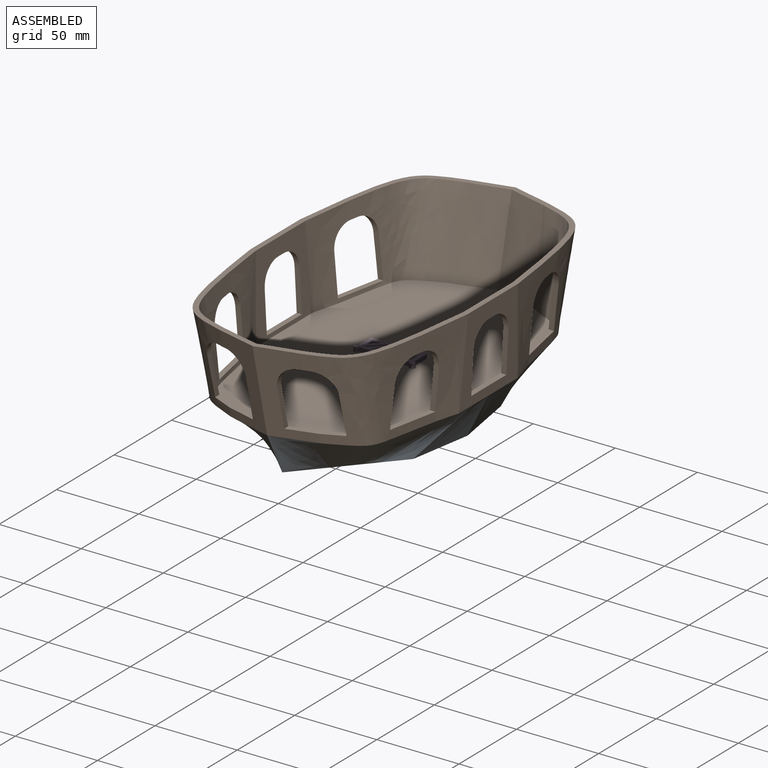
[diagram: assembled view]
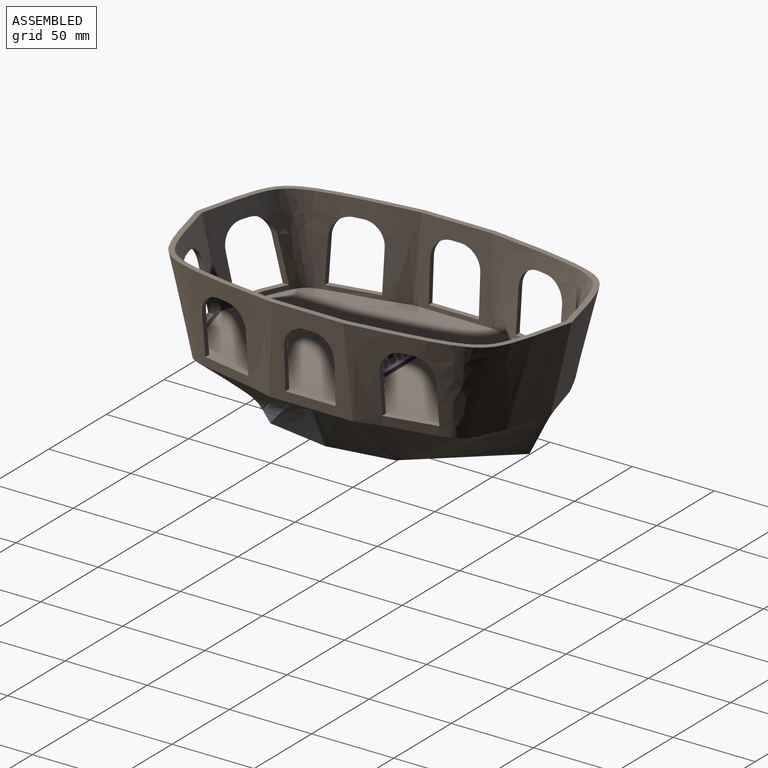
[diagram: assembled view, second angle]
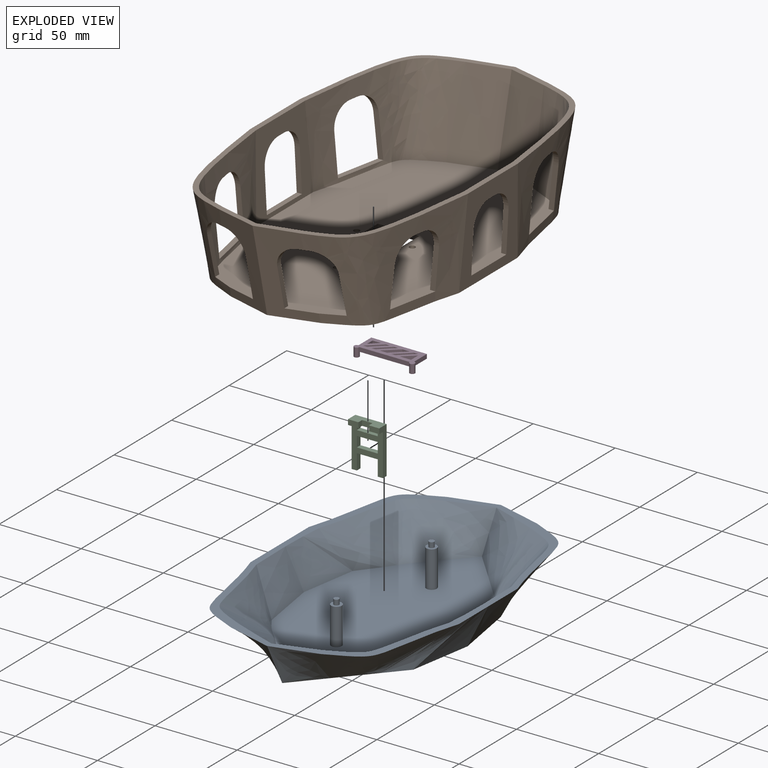
[diagram: exploded view]
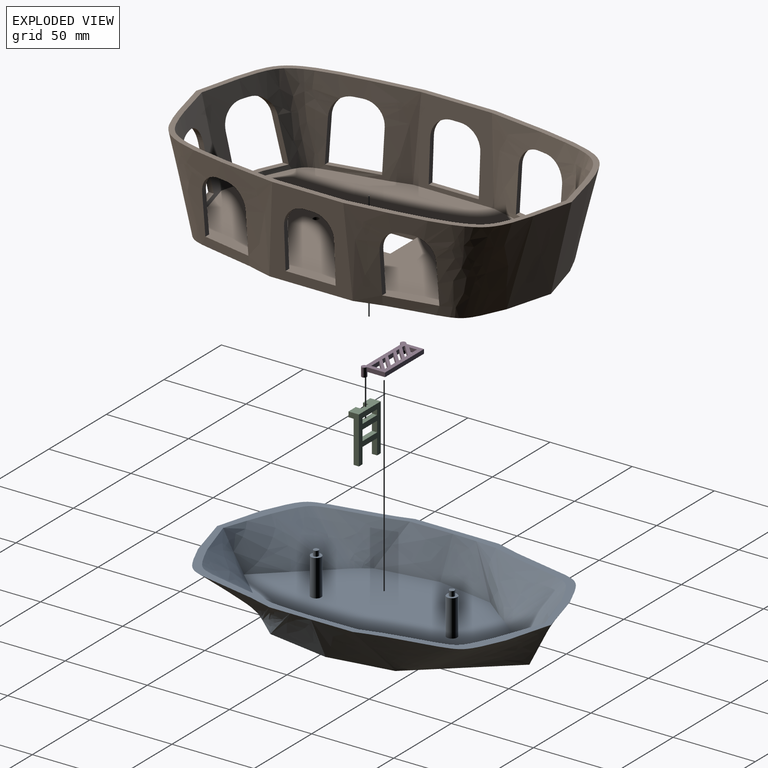
[diagram: exploded view, second angle]
ASSEMBLY  parts=4 mates=6
PART A: 39 faces, bbox 143.2x218.3x43.5 mm
  f0: plane 218.08x141.88mm, normal (0,0,1), area 2269.2mm2, adj f2,f3,f4,f5,f6,f7,f8,f9
  f1: plane 177.63x102.31mm, normal (0,0,-1), area 11730.8mm2, adj f2,f3,f4,f5,f6,f7,f8,f9
  f2: bspline ~38.06x25.4mm, area 744.8mm2, adj f0,f1,f3,f8
  f3: bspline ~38.01x30.21mm, area 409.2mm2, adj f0,f1,f2,f4
  f4: bspline ~68.55x47.32mm, area 2002.2mm2, adj f0,f1,f3,f5
  f5: bspline ~31.8x27.82mm, area 814.1mm2, adj f0,f1,f4,f13
  f6: bspline ~51.27x33.63mm, area 1269.3mm2, adj f0,f1,f7,f12
  f7: bspline ~68.55x36.07mm, area 1757.9mm2, adj f0,f1,f6,f8
  f8: bspline ~38.06x25.4mm, area 945mm2, adj f0,f1,f2,f7
  f9: bspline ~38.06x25.4mm, area 744.8mm2, adj f0,f1,f10,f15
  f10: bspline ~38.31x30.47mm, area 409.2mm2, adj f0,f1,f9,f11
  f11: bspline ~68.55x47.32mm, area 2002.2mm2, adj f0,f1,f10,f12
  f12: bspline ~31.48x27.43mm, area 814.1mm2, adj f0,f1,f6,f11
  f13: bspline ~51.27x33.63mm, area 1269.3mm2, adj f0,f1,f5,f14
  f14: bspline ~68.55x36.07mm, area 1757.9mm2, adj f0,f1,f13,f15
  f15: bspline ~38.06x25.4mm, area 945mm2, adj f0,f1,f9,f14
  f16: plane 173.28x100.45mm, normal (0,0,1), area 10922.6mm2, adj f17,f18,f19,f20,f21,f22,f23,f24
  f17: offset ~44.41x31.75mm, area 630.7mm2, adj f0,f16,f18,f23
  f18: offset ~44.66x36.83mm, area 353.4mm2, adj f0,f16,f17,f19
  f19: offset ~77.02x54.5mm, area 1649.3mm2, adj f0,f16,f18,f20
  f20: offset ~38.15x34.17mm, area 663.8mm2, adj f0,f16,f19,f28
  f21: offset ~57.62x39.98mm, area 1092.1mm2, adj f0,f16,f22,f27
  f22: offset ~76.2x44.38mm, area 1400.4mm2, adj f0,f16,f21,f23
  f23: offset ~44.41x31.75mm, area 807.1mm2, adj f0,f16,f17,f22
  f24: offset ~44.41x31.75mm, area 630.7mm2, adj f0,f16,f25,f30
  f25: offset ~44.66x36.82mm, area 353.3mm2, adj f0,f16,f24,f26
  f26: offset ~77.02x54.5mm, area 1669.5mm2, adj f0,f16,f25,f27
  f27: offset ~38.15x34.17mm, area 662.9mm2, adj f0,f16,f21,f26
  f28: offset ~57.62x39.98mm, area 1092.1mm2, adj f0,f16,f20,f29
  f29: offset ~76.2x44.38mm, area 1400.4mm2, adj f0,f16,f28,f30
  f30: offset ~44.41x31.75mm, area 807.1mm2, adj f0,f16,f24,f29
  f31: cylinder r=3.17mm len=22.23mm, axis (0,0,-1), area 443.4mm2, adj f16,f32
  f32: plane 6.35x6.35mm, normal (0,0,1), area 23.8mm2, adj f31,f37
  f33: cylinder r=3.17mm len=22.23mm, axis (0,0,-1), area 443.4mm2, adj f16,f34
  f34: plane 6.35x6.35mm, normal (0,0,1), area 23.8mm2, adj f33,f35
  f35: cylinder r=1.59mm len=3.18mm, axis (0,0,-1), area 31.7mm2, adj f34,f36
  f36: plane 3.18x3.18mm, normal (0,0,1), area 7.9mm2, adj f35
  f37: cylinder r=1.59mm len=3.18mm, axis (0,0,-1), area 31.7mm2, adj f32,f38
  f38: plane 3.18x3.18mm, normal (0,0,1), area 7.9mm2, adj f37
PART B: 79 faces, bbox 139x235x60.3 mm
  f0: bspline ~86.42x53.98mm, area 4000mm2, adj f8,f10,f11,f12,f55,f56,f57,f58
  f1: bspline ~86.42x53.98mm, area 3999.9mm2, adj f8,f10,f13,f16,f43,f44,f45,f46
  f2: offset ~92.77x60.32mm, area 3532.8mm2, adj f9,f10,f17,f18,f55,f56,f57,f58
  f3: offset ~92.77x60.32mm, area 3532.8mm2, adj f9,f10,f19,f22,f43,f44,f45,f46
  f4: bspline ~53.98x27.43mm, area 857.3mm2, adj f5,f8,f10,f15,f35,f36,f38,f42
  f5: bspline ~86.42x53.98mm, area 3449.8mm2, adj f4,f8,f10,f11,f36,f37,f38,f41
  f6: offset ~60.32x33.78mm, area 753.5mm2, adj f7,f9,f10,f21,f35,f36,f38,f42
  f7: offset ~92.77x60.32mm, area 2940.1mm2, adj f6,f9,f10,f17,f36,f37,f38,f41
  f8: plane 203.49x127.29mm, normal (0,0,-1), area 20828.6mm2, adj f0,f1,f4,f5,f11,f12,f13,f14
  f9: plane 197.94x120.97mm, normal (0,0,1), area 19385.7mm2, adj f2,f3,f6,f7,f17,f18,f19,f20
  f10: plane 229.91x133.94mm, normal (0,0,1), area 1845mm2, adj f0,f1,f2,f3,f4,f5,f6,f7
  f11: plane 54.25x51.08mm, normal (-1,0,-0.05), area 1450.3mm2, adj f0,f5,f8,f10,f59,f60,f61,f62
  f12: bspline ~53.98x27.43mm, area 1492.9mm2, adj f0,f8,f10,f16
  f13: plane 54.25x51.08mm, normal (1,0,-0.05), area 1450.3mm2, adj f1,f8,f10,f14,f51,f52,f53,f54
  f14: bspline ~86.42x53.98mm, area 3449.8mm2, adj f8,f10,f13,f15,f31,f32,f34,f39
  f15: bspline ~53.98x27.43mm, area 857.3mm2, adj f4,f8,f10,f14,f32,f33,f34,f40
  f16: bspline ~53.98x27.43mm, area 1492.9mm2, adj f1,f8,f10,f12
  f17: plane 51.08x49.69mm, normal (1,0,0.05), area 1257.7mm2, adj f2,f7,f9,f10,f59,f60,f61,f62
  f18: offset ~60.32x33.78mm, area 1352.6mm2, adj f2,f9,f10,f22
  f19: plane 51.08x49.69mm, normal (-1,0,0.05), area 1257.7mm2, adj f3,f9,f10,f20,f51,f52,f53,f54
  f20: offset ~92.77x60.32mm, area 2939.9mm2, adj f9,f10,f19,f21,f31,f32,f34,f39
  f21: offset ~60.32x33.78mm, area 753.5mm2, adj f6,f9,f10,f20,f32,f33,f34,f40
  f22: offset ~60.32x33.78mm, area 1352.6mm2, adj f3,f9,f10,f18
  f23: plane 25.4x3.18mm, normal (-1,0,0), area 80.6mm2, adj f8,f9,f24,f25
  f24: plane 25.4x3.18mm, normal (0,-1,0), area 80.6mm2, adj f8,f9,f23,f26
  f25: plane 25.4x3.18mm, normal (0,1,0), area 80.6mm2, adj f8,f9,f23,f26
  f26: plane 25.4x3.18mm, normal (1,0,0), area 80.6mm2, adj f8,f9,f24,f25
  f27: cylinder r=1.78mm len=3.56mm, axis (0,0,-1), area 35.5mm2, adj f8,f9
  f28: cylinder r=1.78mm len=3.56mm, axis (0,0,-1), area 35.5mm2, adj f8,f9
  f29: cylinder r=1.78mm len=3.56mm, axis (0,0,-1), area 35.5mm2, adj f8,f9
  f30: cylinder r=1.78mm len=3.56mm, axis (0,0,-1), area 35.5mm2, adj f8,f9
  f31: plane 25.46x10.47mm, normal (-1,0,0), area 93.2mm2, adj f14,f20,f34,f39
  f32: plane 5.12x4.96mm, normal (0,0,-1), area 17.3mm2, adj f14,f15,f20,f21,f39,f40
  f33: plane 25.41x9.49mm, normal (1,0,0), area 85.8mm2, adj f15,f21,f34,f40
  f34: plane 32.84x16.69mm, normal (0,0,1), area 105.7mm2, adj f14,f15,f20,f21,f31,f33
  f35: plane 25.41x9.49mm, normal (-1,0,0), area 85.8mm2, adj f4,f6,f38,f42
  f36: plane 5.12x4.96mm, normal (0,0,-1), area 17.3mm2, adj f4,f5,f6,f7,f41,f42
  f37: plane 25.46x10.47mm, normal (1,0,0), area 93.2mm2, adj f5,f7,f38,f41
  f38: plane 32.84x16.69mm, normal (0,0,1), area 105.7mm2, adj f4,f5,f6,f7,f35,f37
  f39: cylinder r=12.7mm len=12.7mm, axis (0,-1,0), area 70.9mm2, adj f14,f20,f31,f32
  f40: cylinder r=12.7mm len=12.7mm, axis (0,-1,0), area 67.3mm2, adj f15,f21,f32,f33
  f41: cylinder r=12.7mm len=12.7mm, axis (0,-1,0), area 70.9mm2, adj f5,f7,f36,f37
  f42: cylinder r=12.7mm len=12.7mm, axis (0,-1,0), area 67.3mm2, adj f4,f6,f35,f36
  f43: plane 33.77x12.77mm, normal (0,0,1), area 99.3mm2, adj f1,f3,f44,f46
  f44: plane 25.59x5.68mm, normal (0,1,0), area 82.5mm2, adj f1,f3,f43,f72
  f45: plane 5.13x4.14mm, normal (0,0,-1), area 16.4mm2, adj f1,f3,f71,f72
  f46: plane 26.16x6.82mm, normal (0,-1,0), area 83.4mm2, adj f1,f3,f43,f71
  f47: plane 5.13x4.14mm, normal (0,0,-1), area 16.4mm2, adj f14,f20,f69,f70
  f48: plane 25.59x5.68mm, normal (0,-1,0), area 82.5mm2, adj f14,f20,f49,f70
  f49: plane 30.48x9.48mm, normal (0,0,1), area 99.3mm2, adj f14,f20,f48,f50
  f50: plane 26.16x6.82mm, normal (0,1,0), area 83.4mm2, adj f14,f20,f49,f69
  f51: plane 5.08x3.18mm, normal (0,0,-1), area 16.2mm2, adj f13,f19,f67,f68
  f52: plane 25.4x4.5mm, normal (0,-1,0), area 80.8mm2, adj f13,f19,f53,f68
  f53: plane 30.48x3.18mm, normal (0,0,1), area 96.9mm2, adj f13,f19,f52,f54
  f54: plane 25.4x4.5mm, normal (0,1,0), area 80.8mm2, adj f13,f19,f53,f67
  f55: plane 26.16x6.82mm, normal (0,-1,0), area 83.4mm2, adj f0,f2,f58,f73
  f56: plane 5.13x4.14mm, normal (0,0,-1), area 16.4mm2, adj f0,f2,f73,f74
  f57: plane 25.59x5.68mm, normal (0,1,0), area 82.5mm2, adj f0,f2,f58,f74
  f58: plane 33.77x12.77mm, normal (0,0,1), area 99.3mm2, adj f0,f2,f55,f57
  f59: plane 25.4x4.5mm, normal (0,1,0), area 80.8mm2, adj f11,f17,f60,f78
  f60: plane 30.48x3.18mm, normal (0,0,1), area 96.9mm2, adj f11,f17,f59,f61
  f61: plane 25.4x4.5mm, normal (0,-1,0), area 80.8mm2, adj f11,f17,f60,f77
  f62: plane 5.08x3.18mm, normal (0,0,-1), area 16.2mm2, adj f11,f17,f77,f78
  f63: plane 26.16x6.82mm, normal (0,1,0), area 83.4mm2, adj f5,f7,f64,f76
  f64: plane 30.48x9.48mm, normal (0,0,1), area 99.3mm2, adj f5,f7,f63,f65
  f65: plane 25.59x5.68mm, normal (0,-1,0), area 82.5mm2, adj f5,f7,f64,f75
  f66: plane 5.13x4.14mm, normal (0,0,-1), area 16.4mm2, adj f5,f7,f75,f76
  f67: cylinder r=12.7mm len=12.7mm, axis (-1,0,0), area 63.4mm2, adj f13,f19,f51,f54
  f68: cylinder r=12.7mm len=12.7mm, axis (-1,0,0), area 63.4mm2, adj f13,f19,f51,f52
  f69: cylinder r=12.7mm len=12.7mm, axis (-1,0,0), area 65.1mm2, adj f14,f20,f47,f50
  f70: cylinder r=12.7mm len=12.7mm, axis (-1,0,0), area 64.5mm2, adj f14,f20,f47,f48
  f71: cylinder r=12.7mm len=12.7mm, axis (-1,0,0), area 65.1mm2, adj f1,f3,f45,f46
  f72: cylinder r=12.7mm len=12.7mm, axis (-1,0,0), area 64.5mm2, adj f1,f3,f44,f45
  f73: cylinder r=12.7mm len=12.7mm, axis (-1,0,0), area 65.1mm2, adj f0,f2,f55,f56
  f74: cylinder r=12.7mm len=12.7mm, axis (-1,0,0), area 64.5mm2, adj f0,f2,f56,f57
  f75: cylinder r=12.7mm len=12.7mm, axis (-1,0,0), area 64.5mm2, adj f5,f7,f65,f66
  f76: cylinder r=12.7mm len=12.7mm, axis (-1,0,0), area 65.1mm2, adj f5,f7,f63,f66
  f77: cylinder r=12.7mm len=12.7mm, axis (-1,0,0), area 63.4mm2, adj f11,f17,f61,f62
  f78: cylinder r=12.7mm len=12.7mm, axis (-1,0,0), area 63.4mm2, adj f11,f17,f59,f62
PART C: 23 faces, bbox 19.1x28.6x6.4 mm
  f0: plane 6.35x3.18mm, normal (0,0,1), area 20.2mm2, adj f1,f2,f12,f20
  f1: plane 19.05x6.35mm, normal (0,-1,0), area 80.6mm2, adj f0,f6,f12,f13,f15,f17,f18,f19
  f2: plane 19.05x6.35mm, normal (0,1,0), area 100.8mm2, adj f0,f6,f12,f18,f19,f20,f21,f22
  f3: plane 12.7x3.18mm, normal (0,1,0), area 40.3mm2, adj f4,f16,f17,f18
  f4: plane 6.35x3.18mm, normal (1,0,0), area 20.2mm2, adj f3,f5,f17,f18
  f5: plane 12.7x3.18mm, normal (0,-1,0), area 40.3mm2, adj f4,f16,f17,f18
  f6: plane 28.58x6.35mm, normal (-1,0,0), area 100.8mm2, adj f1,f2,f7,f17,f18,f19
  f7: plane 3.18x3.18mm, normal (0,-1,0), area 10.1mm2, adj f6,f8,f17,f18
  f8: plane 9.53x3.18mm, normal (1,0,0), area 30.2mm2, adj f7,f9,f17,f18
  f9: plane 12.7x3.18mm, normal (0,-1,0), area 40.3mm2, adj f8,f10,f17,f18
  f10: plane 9.53x3.18mm, normal (-1,0,0), area 30.2mm2, adj f9,f11,f17,f18
  f11: plane 3.18x3.18mm, normal (0,-1,0), area 10.1mm2, adj f10,f12,f17,f18
  f12: plane 28.58x6.35mm, normal (1,0,0), area 100.8mm2, adj f0,f1,f2,f11,f17,f18
  f13: plane 3.18x3.18mm, normal (-1,0,0), area 10.1mm2, adj f1,f14,f17,f18
  f14: plane 12.7x3.18mm, normal (0,1,0), area 40.3mm2, adj f13,f15,f17,f18
  f15: plane 3.18x3.18mm, normal (1,0,0), area 10.1mm2, adj f1,f14,f17,f18
  f16: plane 6.35x3.18mm, normal (-1,0,0), area 20.2mm2, adj f3,f5,f17,f18
  f17: plane 25.4x19.05mm, normal (0,0,1), area 241.9mm2, adj f1,f3,f4,f5,f6,f7,f8,f9
  f18: plane 28.58x19.05mm, normal (0,0,-1), area 302.4mm2, adj f1,f2,f3,f4,f5,f6,f7,f8
  f19: plane 6.35x3.18mm, normal (0,0,1), area 20.2mm2, adj f1,f2,f6,f21
  f20: plane 3.18x3.18mm, normal (-1,0,0), area 10.1mm2, adj f0,f1,f2,f22
  f21: plane 3.18x3.18mm, normal (1,0,0), area 10.1mm2, adj f1,f2,f19,f22
  f22: plane 6.35x3.18mm, normal (0,0,1), area 20.2mm2, adj f1,f2,f20,f21
PART D: 33 faces, bbox 37x14.3x5.5 mm
  f0: plane 30.69x2.54mm, normal (0,-1,0), area 78mm2, adj f27,f28,f29,f31
  f1: plane 11.11x2.54mm, normal (-1,0,0), area 28.2mm2, adj f20,f27,f28,f31
  f2: plane 11.11x2.54mm, normal (1,0,0), area 28.2mm2, adj f20,f27,f28,f29
  f3: plane 5.13x4.63mm, normal (0.67,0.74,0), area 17.5mm2, adj f4,f26,f27,f28
  f4: plane 5.13x2.54mm, normal (0,-1,0), area 13mm2, adj f3,f26,f27,f28
  f5: plane 2.54x2.54mm, normal (0,-1,0), area 6.5mm2, adj f6,f21,f27,f28
  f6: plane 7.94x7.17mm, normal (-0.67,-0.74,0), area 27.2mm2, adj f5,f7,f27,f28
  f7: plane 2.54x0.45mm, normal (-1,0,0), area 1.1mm2, adj f6,f8,f27,f28
  f8: plane 2.54x2.04mm, normal (0,1,0), area 5.2mm2, adj f7,f21,f27,f28
  f9: plane 2.54x2.54mm, normal (0,-1,0), area 6.5mm2, adj f10,f22,f27,f28
  f10: plane 8.43x7.62mm, normal (-0.67,-0.74,0), area 28.9mm2, adj f9,f11,f27,f28
  f11: plane 2.54x2.54mm, normal (0,1,0), area 6.5mm2, adj f10,f22,f27,f28
  f12: plane 2.54x2.54mm, normal (0,1,0), area 6.5mm2, adj f13,f23,f27,f28
  f13: plane 8.43x7.62mm, normal (0.67,0.74,0), area 28.9mm2, adj f12,f14,f27,f28
  f14: plane 2.54x2.54mm, normal (0,-1,0), area 6.5mm2, adj f13,f23,f27,f28
  f15: plane 6.96x6.29mm, normal (-0.67,-0.74,0), area 23.8mm2, adj f16,f24,f27,f28
  f16: plane 6.96x2.54mm, normal (0,1,0), area 17.7mm2, adj f15,f24,f27,f28
  f17: plane 4.54x2.54mm, normal (0,1,0), area 11.5mm2, adj f18,f25,f27,f28
  f18: plane 8.43x7.62mm, normal (0.67,0.74,0), area 28.9mm2, adj f17,f19,f27,f28
  f19: plane 4.54x2.54mm, normal (0,-1,0), area 11.5mm2, adj f18,f25,f27,f28
  f20: plane 33.87x2.54mm, normal (0,1,0), area 86mm2, adj f1,f2,f27,f28
  f21: plane 8.43x7.62mm, normal (0.67,0.74,0), area 28.9mm2, adj f5,f8,f27,f28
  f22: plane 8.43x7.62mm, normal (0.67,0.74,0), area 28.9mm2, adj f9,f11,f27,f28
  f23: plane 8.43x7.62mm, normal (-0.67,-0.74,0), area 28.9mm2, adj f12,f14,f27,f28
  f24: plane 6.29x2.54mm, normal (1,0,0), area 16mm2, adj f15,f16,f27,f28
  f25: plane 8.43x7.62mm, normal (-0.67,-0.74,0), area 28.9mm2, adj f17,f19,f27,f28
  f26: plane 4.63x2.54mm, normal (-1,0,0), area 11.8mm2, adj f3,f4,f27,f28
  f27: plane 33.87x12.7mm, normal (0,0,1), area 299.8mm2, adj f0,f1,f2,f3,f4,f5,f6,f7
  f28: plane 37.04x14.29mm, normal (0,0,-1), area 315.7mm2, adj f0,f1,f2,f3,f4,f5,f6,f7
  f29: cylinder r=1.59mm len=5.46mm, axis (0,0,-1), area 48.1mm2, adj f0,f2,f27,f28,f30
  f30: plane 3.18x3.18mm, normal (0,0,1), area 7.9mm2, adj f29
  f31: cylinder r=1.59mm len=5.46mm, axis (0,0,-1), area 48.1mm2, adj f0,f1,f27,f28,f32
  f32: plane 3.18x3.18mm, normal (0,0,1), area 7.9mm2, adj f31
PLACE A t=(-21.8,-91.22,-66.5)mm
PLACE B t=(-21.8,-91.22,-66.5)mm
PLACE C rot(axis=(1,0,0),90deg) t=(-32.61,-100.74,-88.72)mm
PLACE D rot(axis=(0,1,0),180deg) t=(-38.44,-91.22,-60.78)mm
MATE planar C.f1 <-> B.f9  axis (0,0,-1) through (-23.09,-103.92,-63.32)mm
MATE planar C.f17 <-> B.f25  axis (0,-1,0) through (-23.09,-103.92,-74.96)mm
MATE cylindrical D.f29 <-> B.f27  axis (0,0,1) through (-38.44,-91.22,-63.51)mm
MATE planar B.f30 <-> A.f32  axis (0,0,-1) through (-21.8,-132.57,-66.5)mm
MATE planar B.f9 <-> D.f27  axis (0,0,1) through (-21.8,-91.22,-63.32)mm
MATE cylindrical B.f30 <-> A.f33  axis (0,0,-1) through (-21.8,-132.57,-64.91)mm
